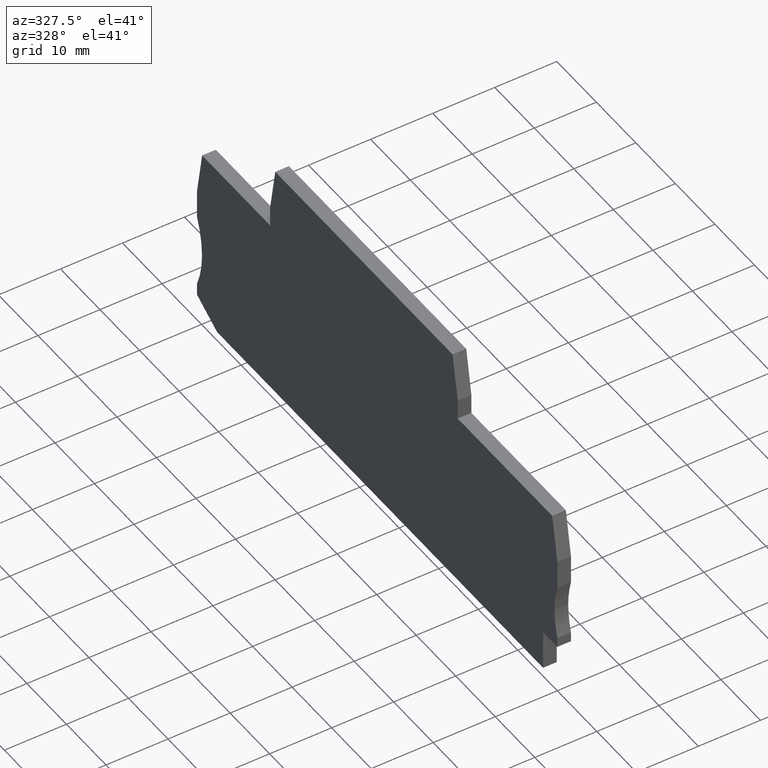
[diagram: clean part render]
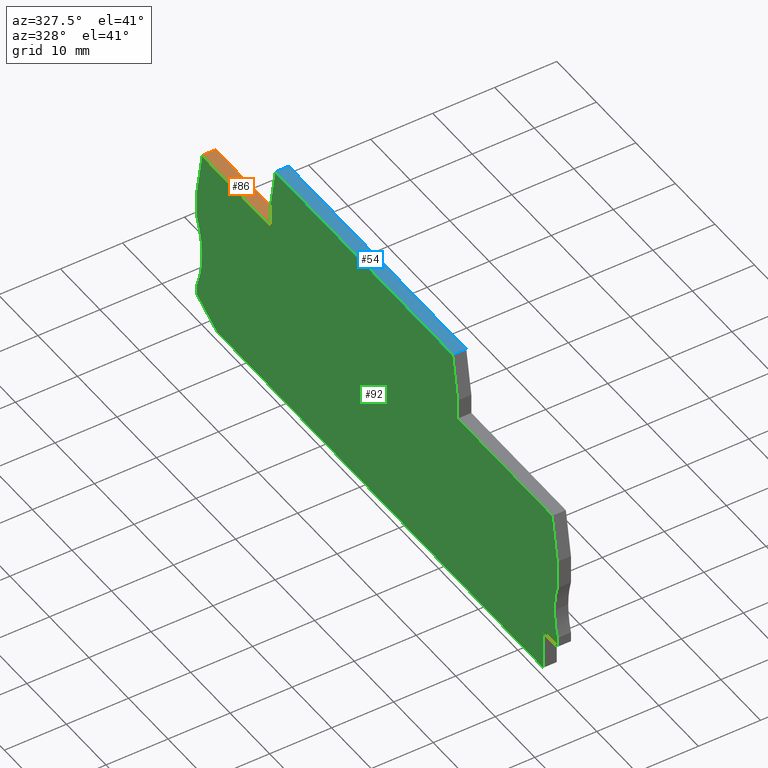
[diagram: same view with three faces highlighted in distinct colors, each labeled with its STEP entity id]
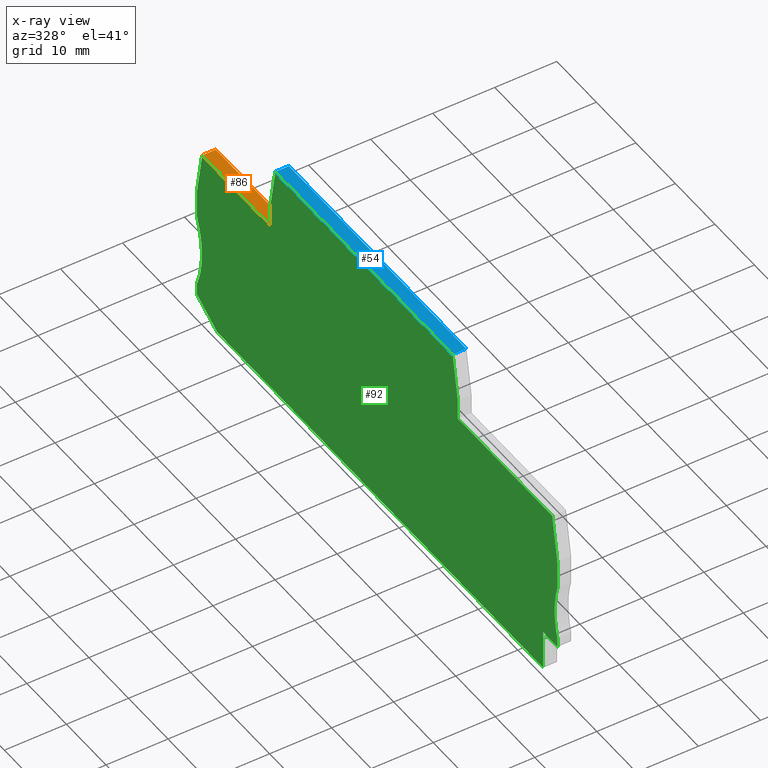
[diagram: x-ray of the same camera — body ghosted, the three highlighted faces saturated]
A machine part, auxiliary view with three faces highlighted in distinct colors.
The next image is the same camera in x-ray (body ghosted, the three faces saturated) — at least one of them is partly hidden behind the body in this view.
Their STEP definitions:

[orange] entity #86 — the highlighted planar face has unit normal (0, -0, 1).
#86=ADVANCED_FACE('',(#169),#170,.T.);
#169=FACE_OUTER_BOUND('',#246,.T.);
#170=PLANE('',#247);
#246=EDGE_LOOP('',(#412,#413,#414,#415));
#247=AXIS2_PLACEMENT_3D('',#416,#417,#418);
#412=ORIENTED_EDGE('',*,*,#557,.F.);
#413=ORIENTED_EDGE('',*,*,#544,.T.);
#414=ORIENTED_EDGE('',*,*,#558,.T.);
#415=ORIENTED_EDGE('',*,*,#533,.T.);
#416=CARTESIAN_POINT('',(0.0,72.6500000139878,29.0499999999983));
#417=DIRECTION('',(2.46511816930322E-018,-4.85722573273506E-017,1.0));
#418=DIRECTION('',(-4.7037256739877E-017,1.0,4.85722573273506E-017));
#533=EDGE_CURVE('',#650,#651,#652,.T.);
#544=EDGE_CURVE('',#670,#668,#671,.T.);
#557=EDGE_CURVE('',#670,#651,#686,.T.);
#558=EDGE_CURVE('',#668,#650,#687,.T.);
#650=VERTEX_POINT('',#814);
#651=VERTEX_POINT('',#815);
#652=LINE('',#816,#817);
#668=VERTEX_POINT('',#840);
#670=VERTEX_POINT('',#843);
#671=LINE('',#844,#845);
#686=LINE('',#866,#867);
#687=LINE('',#868,#869);
#814=CARTESIAN_POINT('',(2.2,89.8539963970262,29.0499999999983));
#815=CARTESIAN_POINT('',(0.0,89.8539963970262,29.0499999999983));
#816=CARTESIAN_POINT('',(-48.52,89.8539963970262,29.0499999999983));
#817=VECTOR('',#931,1.0);
#840=CARTESIAN_POINT('',(2.2,72.6500000139878,29.0499999999983));
#843=CARTESIAN_POINT('',(0.0,72.6500000139878,29.0499999999983));
#844=CARTESIAN_POINT('',(-48.52,72.6500000139878,29.0499999999983));
#845=VECTOR('',#940,1.0);
#866=CARTESIAN_POINT('',(0.0,61.6211162538102,29.0499999999983));
#867=VECTOR('',#953,1.0);
#868=CARTESIAN_POINT('',(2.2,61.6211162538102,29.0499999999983));
#869=VECTOR('',#954,1.0);
#931=DIRECTION('',(-1.0,-4.7037256739877E-017,2.46511816930322E-018));
#940=DIRECTION('',(1.0,4.7037256739877E-017,-2.46511816930322E-018));
#953=DIRECTION('',(-4.7037256739877E-017,1.0,4.85722573273506E-017));
#954=DIRECTION('',(-4.7037256739877E-017,1.0,4.85722573273506E-017));

[blue] entity #54 — the highlighted planar face has unit normal (0, -0, 1).
#54=ADVANCED_FACE('',(#121),#122,.T.);
#121=FACE_OUTER_BOUND('',#198,.T.);
#122=PLANE('',#199);
#198=EDGE_LOOP('',(#284,#285,#286,#287));
#199=AXIS2_PLACEMENT_3D('',#288,#289,#290);
#284=ORIENTED_EDGE('',*,*,#493,.F.);
#285=ORIENTED_EDGE('',*,*,#494,.F.);
#286=ORIENTED_EDGE('',*,*,#495,.T.);
#287=ORIENTED_EDGE('',*,*,#496,.T.);
#288=CARTESIAN_POINT('',(0.0,26.9155525542731,39.6499999999919));
#289=DIRECTION('',(2.46511816930322E-018,-4.85722573273506E-017,1.0));
#290=DIRECTION('',(-4.7037256739877E-017,1.0,4.85722573273506E-017));
#493=EDGE_CURVE('',#590,#591,#592,.T.);
#494=EDGE_CURVE('',#593,#590,#594,.T.);
#495=EDGE_CURVE('',#593,#595,#596,.T.);
#496=EDGE_CURVE('',#595,#591,#597,.T.);
#590=VERTEX_POINT('',#726);
#591=VERTEX_POINT('',#727);
#592=LINE('',#728,#729);
#593=VERTEX_POINT('',#730);
#594=LINE('',#731,#732);
#595=VERTEX_POINT('',#733);
#596=LINE('',#734,#735);
#597=LINE('',#736,#737);
#726=CARTESIAN_POINT('',(0.0,26.4960027386844,39.6499999999919));
#727=CARTESIAN_POINT('',(0.0,71.3539967057631,39.6499999999919));
#728=CARTESIAN_POINT('',(0.0,61.6211162538102,39.6499999999919));
#729=VECTOR('',#897,1.0);
#730=CARTESIAN_POINT('',(2.2,26.4960027386844,39.6499999999919));
#731=CARTESIAN_POINT('',(-48.52,26.4960027386844,39.6499999999919));
#732=VECTOR('',#898,1.0);
#733=CARTESIAN_POINT('',(2.2,71.3539967057631,39.6499999999919));
#734=CARTESIAN_POINT('',(2.2,61.6211162538102,39.6499999999919));
#735=VECTOR('',#899,1.0);
#736=CARTESIAN_POINT('',(-48.52,71.3539967057631,39.6499999999919));
#737=VECTOR('',#900,1.0);
#897=DIRECTION('',(-4.7037256739877E-017,1.0,4.85722573273506E-017));
#898=DIRECTION('',(-1.0,-4.7037256739877E-017,2.46511816930322E-018));
#899=DIRECTION('',(-4.7037256739877E-017,1.0,4.85722573273506E-017));
#900=DIRECTION('',(-1.0,-4.7037256739877E-017,2.46511816930322E-018));

[green] entity #92 — the highlighted planar face has unit normal (-1, -0, 0).
#92=ADVANCED_FACE('',(#178),#179,.T.);
#178=FACE_OUTER_BOUND('',#255,.T.);
#179=PLANE('',#256);
#255=EDGE_LOOP('',(#453,#454,#455,#456,#457,#458,#459,#460,#461,#462,#463,#464,#465,#466,#467,#468,#469,#470,#471,#472,#473));
#256=AXIS2_PLACEMENT_3D('',#474,#475,#476);
#453=ORIENTED_EDGE('',*,*,#549,.T.);
#454=ORIENTED_EDGE('',*,*,#538,.T.);
#455=ORIENTED_EDGE('',*,*,#531,.T.);
#456=ORIENTED_EDGE('',*,*,#524,.T.);
#457=ORIENTED_EDGE('',*,*,#516,.T.);
#458=ORIENTED_EDGE('',*,*,#506,.T.);
#459=ORIENTED_EDGE('',*,*,#498,.F.);
#460=ORIENTED_EDGE('',*,*,#487,.F.);
#461=ORIENTED_EDGE('',*,*,#491,.T.);
#462=ORIENTED_EDGE('',*,*,#510,.T.);
#463=ORIENTED_EDGE('',*,*,#520,.T.);
#464=ORIENTED_EDGE('',*,*,#526,.T.);
#465=ORIENTED_EDGE('',*,*,#502,.T.);
#466=ORIENTED_EDGE('',*,*,#493,.T.);
#467=ORIENTED_EDGE('',*,*,#551,.T.);
#468=ORIENTED_EDGE('',*,*,#545,.T.);
#469=ORIENTED_EDGE('',*,*,#557,.T.);
#470=ORIENTED_EDGE('',*,*,#536,.T.);
#471=ORIENTED_EDGE('',*,*,#560,.T.);
#472=ORIENTED_EDGE('',*,*,#480,.T.);
#473=ORIENTED_EDGE('',*,*,#555,.T.);
#474=CARTESIAN_POINT('',(0.0,59.7488511527881,39.0160702764117));
#475=DIRECTION('',(-1.0,-4.7037256739877E-017,2.46511816930322E-018));
#476=DIRECTION('',(-2.46511816930322E-018,4.85722573273506E-017,-1.0));
#480=EDGE_CURVE('',#569,#566,#570,.T.);
#487=EDGE_CURVE('',#580,#576,#582,.T.);
#491=EDGE_CURVE('',#580,#586,#588,.T.);
#493=EDGE_CURVE('',#590,#591,#592,.T.);
#498=EDGE_CURVE('',#576,#599,#600,.T.);
#502=EDGE_CURVE('',#605,#590,#606,.T.);
#506=EDGE_CURVE('',#611,#599,#612,.T.);
#510=EDGE_CURVE('',#586,#617,#618,.T.);
#516=EDGE_CURVE('',#624,#611,#627,.T.);
#520=EDGE_CURVE('',#617,#631,#633,.T.);
#524=EDGE_CURVE('',#636,#624,#639,.T.);
#526=EDGE_CURVE('',#631,#605,#641,.T.);
#531=EDGE_CURVE('',#645,#636,#648,.T.);
#536=EDGE_CURVE('',#651,#655,#657,.T.);
#538=EDGE_CURVE('',#659,#645,#660,.T.);
#545=EDGE_CURVE('',#666,#670,#672,.T.);
#549=EDGE_CURVE('',#675,#659,#678,.T.);
#551=EDGE_CURVE('',#591,#666,#680,.T.);
#555=EDGE_CURVE('',#566,#675,#684,.T.);
#557=EDGE_CURVE('',#670,#651,#686,.T.);
#560=EDGE_CURVE('',#655,#569,#689,.T.);
#566=VERTEX_POINT('',#695);
#569=VERTEX_POINT('',#699);
#570=CIRCLE('',#700,15.0);
#576=VERTEX_POINT('',#707);
#580=VERTEX_POINT('',#712);
#582=CIRCLE('',#715,15.0);
#586=VERTEX_POINT('',#720);
#588=LINE('',#723,#724);
#590=VERTEX_POINT('',#726);
#591=VERTEX_POINT('',#727);
#592=LINE('',#728,#729);
#599=VERTEX_POINT('',#739);
#600=CIRCLE('',#740,15.0);
#605=VERTEX_POINT('',#746);
#606=LINE('',#747,#748);
#611=VERTEX_POINT('',#755);
#612=LINE('',#756,#757);
#617=VERTEX_POINT('',#764);
#618=LINE('',#765,#766);
#624=VERTEX_POINT('',#774);
#627=LINE('',#779,#780);
#631=VERTEX_POINT('',#785);
#633=LINE('',#788,#789);
#636=VERTEX_POINT('',#792);
#639=LINE('',#797,#798);
#641=LINE('',#800,#801);
#645=VERTEX_POINT('',#806);
#648=LINE('',#811,#812);
#651=VERTEX_POINT('',#815);
#655=VERTEX_POINT('',#821);
#657=LINE('',#824,#825);
#659=VERTEX_POINT('',#827);
#660=LINE('',#828,#829);
#666=VERTEX_POINT('',#837);
#670=VERTEX_POINT('',#843);
#672=LINE('',#846,#847);
#675=VERTEX_POINT('',#850);
#678=LINE('',#855,#856);
#680=LINE('',#858,#859);
#684=CIRCLE('',#864,15.0);
#686=LINE('',#866,#867);
#689=LINE('',#871,#872);
#695=CARTESIAN_POINT('',(7.00572203590995E-016,89.8977270988352,10.9999999999986));
#699=CARTESIAN_POINT('',(0.0,91.1500000139677,16.9999999999987));
#700=AXIS2_PLACEMENT_3D('',#879,#880,#881);
#707=CARTESIAN_POINT('',(-6.93970984133115E-016,0.690911992714305,12.5000000000046));
#712=CARTESIAN_POINT('',(0.0,1.39677993615805E-008,17.0000000000067));
#715=AXIS2_PLACEMENT_3D('',#891,#892,#893);
#720=CARTESIAN_POINT('',(0.0,1.39677993615805E-008,21.7000017510241));
#723=CARTESIAN_POINT('',(0.0,1.39677993615805E-008,38.2000000000068));
#724=VECTOR('',#896,1.0);
#726=CARTESIAN_POINT('',(0.0,26.4960027386844,39.6499999999919));
#727=CARTESIAN_POINT('',(0.0,71.3539967057631,39.6499999999919));
#728=CARTESIAN_POINT('',(0.0,61.6211162538102,39.6499999999919));
#729=VECTOR('',#897,1.0);
#739=CARTESIAN_POINT('',(0.0,0.0,7.9999999555878));
#740=AXIS2_PLACEMENT_3D('',#901,#902,#903);
#746=CARTESIAN_POINT('',(0.0,25.1999994304793,32.3000000000039));
#747=CARTESIAN_POINT('',(0.0,26.2403286166598,38.2000000000068));
#748=VECTOR('',#908,1.0);
#755=CARTESIAN_POINT('',(0.0,0.0,6.4000000000067));
#756=CARTESIAN_POINT('',(0.0,0.0,38.2000000000068));
#757=VECTOR('',#911,1.0);
#764=CARTESIAN_POINT('',(0.0,1.296003013423,29.0500000000043));
#765=CARTESIAN_POINT('',(0.0,2.9093948869058,38.2000000000068));
#766=VECTOR('',#914,1.0);
#774=CARTESIAN_POINT('',(0.0,3.5999996912634,6.4000000000064));
#779=CARTESIAN_POINT('',(0.0,61.6211162538102,6.4000000000012));
#780=VECTOR('',#919,1.0);
#785=CARTESIAN_POINT('',(0.0,25.1999994304793,29.0499999999902));
#788=CARTESIAN_POINT('',(0.0,61.6211162538102,29.0499999999688));
#789=VECTOR('',#922,1.0);
#792=CARTESIAN_POINT('',(0.0,3.5999996912628,-1.98951966012828E-013));
#797=CARTESIAN_POINT('',(0.0,3.5999996912662,38.2000000000068));
#798=VECTOR('',#925,1.0);
#800=CARTESIAN_POINT('',(0.0,25.1999994304793,38.2000000000068));
#801=VECTOR('',#926,1.0);
#806=CARTESIAN_POINT('',(0.0,86.0450575334422,-1.98951966012828E-013));
#811=CARTESIAN_POINT('',(0.0,61.6211162538102,-1.98951966012828E-013));
#812=VECTOR('',#930,1.0);
#815=CARTESIAN_POINT('',(0.0,89.8539963970262,29.0499999999983));
#821=CARTESIAN_POINT('',(0.0,91.1500000139677,21.6999982490788));
#824=CARTESIAN_POINT('',(0.0,88.2406045235422,38.2000000000068));
#825=VECTOR('',#934,1.0);
#827=CARTESIAN_POINT('',(0.0,91.1500000139677,2.999865465265));
#828=CARTESIAN_POINT('',(0.0,61.6211162538102,-14.3524708162613));
#829=VECTOR('',#935,1.0);
#837=CARTESIAN_POINT('',(0.0,72.6500000139878,32.2999999998926));
#843=CARTESIAN_POINT('',(0.0,72.6500000139878,29.0499999999983));
#846=CARTESIAN_POINT('',(0.0,72.6500000139878,38.2000000000068));
#847=VECTOR('',#941,1.0);
#850=CARTESIAN_POINT('',(0.0,91.1500000139677,4.9999999999986));
#855=CARTESIAN_POINT('',(0.0,91.1500000139677,38.2000000000068));
#856=VECTOR('',#944,1.0);
#858=CARTESIAN_POINT('',(0.0,71.6096708277877,38.2000000000068));
#859=VECTOR('',#945,1.0);
#864=AXIS2_PLACEMENT_3D('',#950,#951,#952);
#866=CARTESIAN_POINT('',(0.0,61.6211162538102,29.0499999999983));
#867=VECTOR('',#953,1.0);
#871=CARTESIAN_POINT('',(0.0,91.1500000139677,38.2000000000068));
#872=VECTOR('',#955,1.0);
#879=CARTESIAN_POINT('',(0.0,104.897727098835,10.9999999999986));
#880=DIRECTION('',(1.0,4.7037256739877E-017,-2.46511816930322E-018));
#881=DIRECTION('',(-4.7037256739877E-017,1.0,4.85722573273506E-017));
#891=CARTESIAN_POINT('',(0.0,-14.3090880072857,12.5000000000046));
#892=DIRECTION('',(-1.0,-4.7037256739877E-017,2.46511816930322E-018));
#893=DIRECTION('',(4.7037256739877E-017,-1.0,-4.85722573273506E-017));
#896=DIRECTION('',(2.46511816930322E-018,-4.85722573273506E-017,1.0));
#897=DIRECTION('',(-4.7037256739877E-017,1.0,4.85722573273506E-017));
#901=CARTESIAN_POINT('',(0.0,-14.3090880072857,12.5000000000046));
#902=DIRECTION('',(-1.0,-4.7037256739877E-017,2.46511816930322E-018));
#903=DIRECTION('',(4.7037256739877E-017,-1.0,-4.85722573273506E-017));
#908=DIRECTION('',(-5.74026643011009E-018,0.17364817766693,0.984807753012208));
#911=DIRECTION('',(2.46511816930322E-018,-2.0446619030417E-018,1.0));
#914=DIRECTION('',(-5.7402664301099E-018,0.173648177666926,0.984807753012209));
#919=DIRECTION('',(4.70372567398772E-017,-1.0,8.99995757206863E-014));
#922=DIRECTION('',(-4.70372567398784E-017,1.0,-5.88156992698175E-013));
#925=DIRECTION('',(2.46511816929899E-018,8.99995757206863E-014,1.0));
#926=DIRECTION('',(2.46511816930322E-018,-4.85722573273506E-017,1.0));
#930=DIRECTION('',(4.7037256739877E-017,-1.0,-4.85722573273506E-017));
#934=DIRECTION('',(-1.05956014005522E-017,0.17364817766693,-0.984807753012208));
#935=DIRECTION('',(3.93046538213499E-017,-0.862158641431198,-0.506638408537598));
#941=DIRECTION('',(-2.46511816930363E-018,8.79371362082641E-015,-1.0));
#944=DIRECTION('',(-2.46511816930322E-018,4.85722573273506E-017,-1.0));
#945=DIRECTION('',(-1.05956014005523E-017,0.173648177666931,-0.984807753012208));
#950=CARTESIAN_POINT('',(0.0,104.897727098835,10.9999999999986));
#951=DIRECTION('',(1.0,4.7037256739877E-017,-2.46511816930322E-018));
#952=DIRECTION('',(-4.7037256739877E-017,1.0,4.85722573273506E-017));
#953=DIRECTION('',(-4.7037256739877E-017,1.0,4.85722573273506E-017));
#955=DIRECTION('',(-2.46511816930322E-018,4.85722573273506E-017,-1.0));